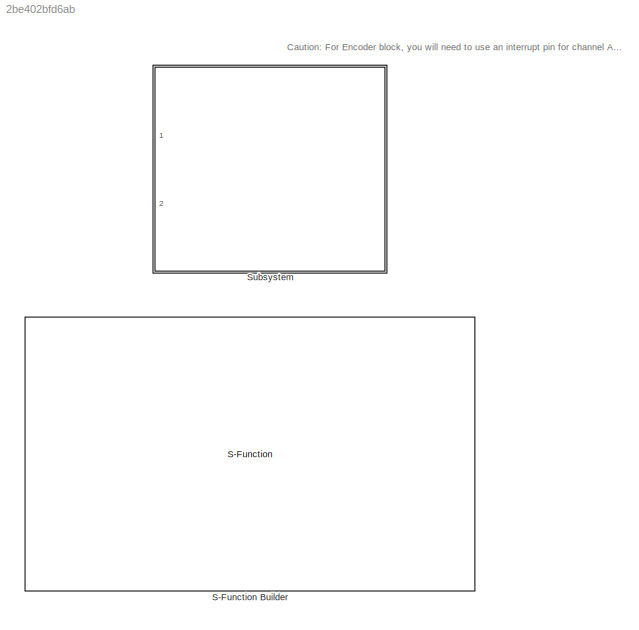
MODEL slx_2be402bfd6ab
KIND library
CONFIG AbsTol = auto
CONFIG EnableMultiTasking = off
CONFIG FixedStep = auto
CONFIG MaxStep = auto
CONFIG MinStep = auto
CONFIG RelTol = 1e-3
CONFIG SampleTimeConstraint = Unconstrained
CONFIG Solver = VariableStepAuto
CONFIG SolverName = VariableStepAuto
CONFIG StartTime = 0.0
CONFIG StopTime = 10.0
BLOCK [S-Function] S-Function Builder
  CopyFcn = set_param(gcbh,'LinkStatus','none')
  EnableBusSupport = off
  FunctionName = dual_counter_x2
  InitFcn = try, set_param(gcb,'FunctionName','dual_counter_x2'), end
  OpenFcn = sfunctionwizard(gcbh)
  Ports = [4, 2]
  PreSaveFcn = try, set_param(gcb,'FunctionName','dual_counter_x2'), end
  SFcnIsStateOwnerBlock = off
  SFunctionDeploymentMode = off
  SFunctionModules = dual_counter_x2_wrapper
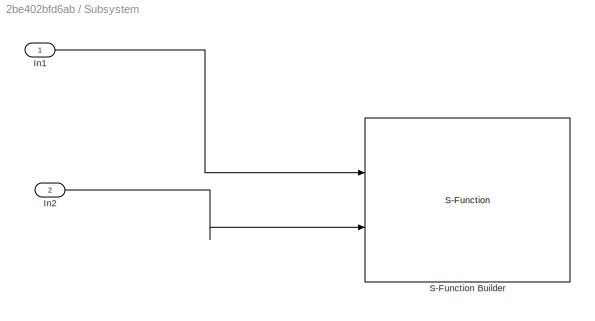
BLOCK [SubSystem] Subsystem
  Ports = [2]
  RequestExecContextInheritance = off
BLOCK [Inport] Subsystem/In1
  IconDisplay = Port number
BLOCK [Inport] Subsystem/In2
  IconDisplay = Port number
  Port = 2
BLOCK [S-Function] Subsystem/S-Function Builder
  CopyFcn = set_param(gcbh,'LinkStatus','none')
  EnableBusSupport = off
  FunctionName = sfunc_dcmotor
  InitFcn = try, set_param(gcb,'FunctionName','sfunc_dcmotor'), end
  OpenFcn = sfunctionwizard(gcbh)
  Ports = [2]
  PreSaveFcn = try, set_param(gcb,'FunctionName','sfunc_dcmotor'), end
  SFcnIsStateOwnerBlock = off
  SFunctionDeploymentMode = off
  SFunctionModules = sfunc_dcmotor_wrapper
ANNOTATION (root): Caution: For Encoder block, you will need to use an interrupt pin for channel A. However, you cannot use pin 2 because DCMotor shields use pin 2 for interrupt function. Also, there are other pins cannot be used if motor shield is on the arduino board. These pins are: 4, 6, 7, 8, 9, 10, 12
LINE Subsystem/In1:1 -> Subsystem/S-Function Builder:1
LINE Subsystem/In2:1 -> Subsystem/S-Function Builder:2
